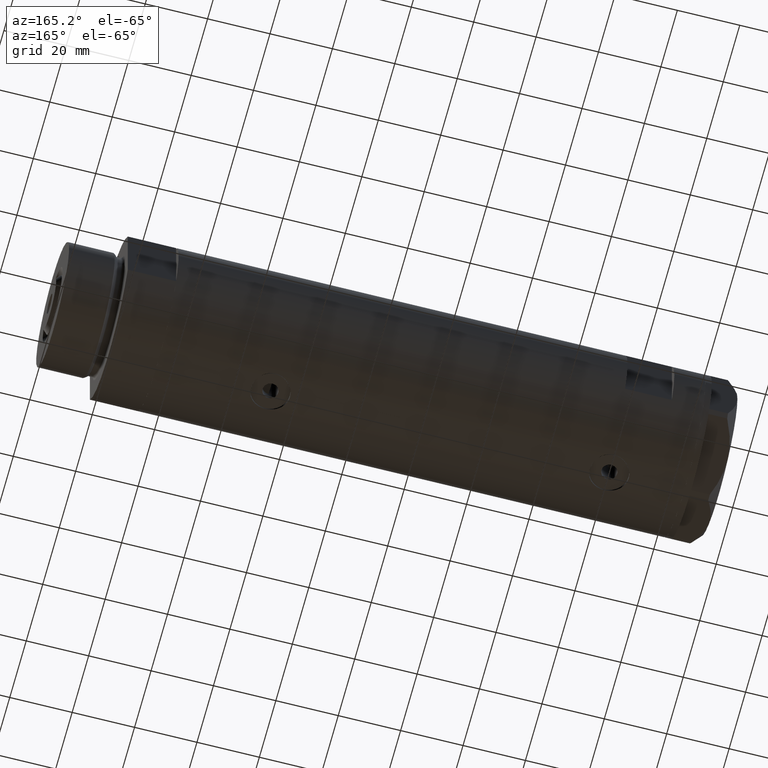
[diagram: clean part render]
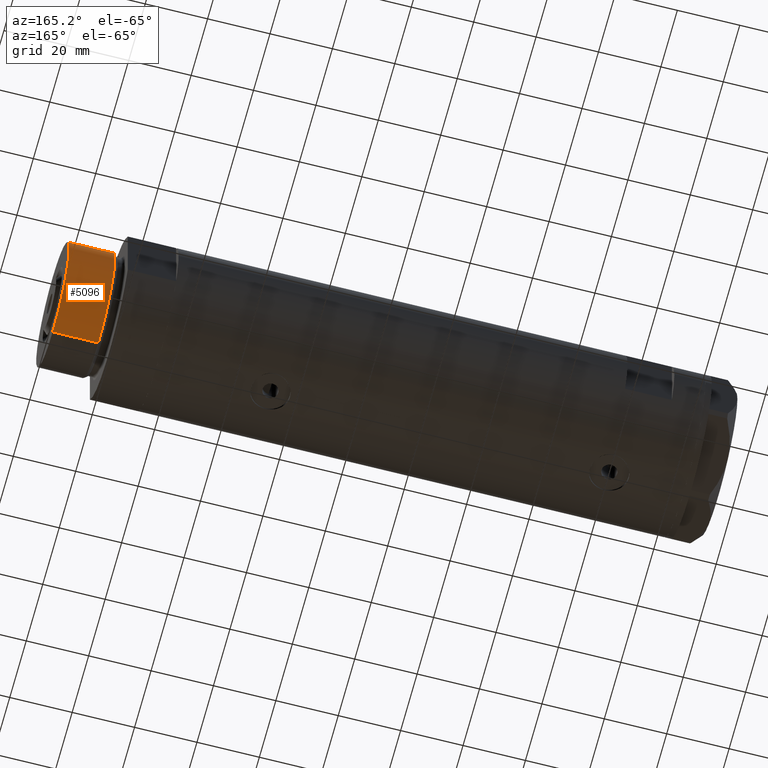
[diagram: same view with one face highlighted and labeled with its STEP entity id]
A machine part, auxiliary view. The second image highlights one B-rep face of the part: STEP entity #5096.
In plain terms, the highlighted cylindrical surface (partial cylindrical patch) has radius 20 mm, axis along (-1, -0, 0).
Its self-contained STEP definition (entity closure, byte-faithful):
#182 = CARTESIAN_POINT ( 'NONE',  ( -19.99999999999999645, 0.000000000000000000, 18.87384048104053846 ) ) ;
#319 = ORIENTED_EDGE ( 'NONE', *, *, #559, .T. ) ;
#559 = EDGE_CURVE ( 'NONE', #4951, #3805, #786, .T. ) ;
#562 = EDGE_CURVE ( 'NONE', #4951, #3123, #3893, .T. ) ;
#785 = DIRECTION ( 'NONE',  ( -0.000000000000000000, -0.000000000000000000, -1.000000000000000000 ) ) ;
#786 = LINE ( 'NONE', #5188, #2713 ) ;
#952 = VECTOR ( 'NONE', #785, 1000.000000000000000 ) ;
#1252 = DIRECTION ( 'NONE',  ( 1.000000000000000000, 0.000000000000000000, 0.000000000000000000 ) ) ;
#1317 = ORIENTED_EDGE ( 'NONE', *, *, #5001, .F. ) ;
#1455 = CYLINDRICAL_SURFACE ( 'NONE', #4993, 19.99999999999999645 ) ;
#1896 = CARTESIAN_POINT ( 'NONE',  ( 0.000000000000000000, 0.000000000000000000, 18.87384048104053846 ) ) ;
#1996 = DIRECTION ( 'NONE',  ( -0.000000000000000000, -0.000000000000000000, -1.000000000000000000 ) ) ;
#2172 = VERTEX_POINT ( 'NONE', #182 ) ;
#2185 = CARTESIAN_POINT ( 'NONE',  ( 0.000000000000000000, 0.000000000000000000, 33.50000000000000000 ) ) ;
#2464 = CARTESIAN_POINT ( 'NONE',  ( 0.000000000000000000, 0.000000000000000000, 33.50000000000000000 ) ) ;
#2713 = VECTOR ( 'NONE', #1996, 1000.000000000000000 ) ;
#2778 = LINE ( 'NONE', #4387, #952 ) ;
#2872 = ORIENTED_EDGE ( 'NONE', *, *, #562, .F. ) ;
#3004 = DIRECTION ( 'NONE',  ( -0.000000000000000000, -0.000000000000000000, -1.000000000000000000 ) ) ;
#3123 = VERTEX_POINT ( 'NONE', #4079 ) ;
#3375 = EDGE_LOOP ( 'NONE', ( #2872, #319, #4270, #1317 ) ) ;
#3431 = FACE_OUTER_BOUND ( 'NONE', #3375, .T. ) ;
#3703 = AXIS2_PLACEMENT_3D ( 'NONE', #2464, #4001, #1252 ) ;
#3724 = CIRCLE ( 'NONE', #4902, 19.99999999999999645 ) ;
#3764 = CARTESIAN_POINT ( 'NONE',  ( 19.99999999999999645, 2.449293598294706119E-15, 18.87384048104053846 ) ) ;
#3805 = VERTEX_POINT ( 'NONE', #3764 ) ;
#3893 = CIRCLE ( 'NONE', #3703, 19.99999999999999645 ) ;
#3952 = DIRECTION ( 'NONE',  ( -0.000000000000000000, -0.000000000000000000, 1.000000000000000000 ) ) ;
#4001 = DIRECTION ( 'NONE',  ( 0.000000000000000000, 0.000000000000000000, 1.000000000000000000 ) ) ;
#4079 = CARTESIAN_POINT ( 'NONE',  ( -19.99999999999999645, 0.000000000000000000, 33.50000000000000000 ) ) ;
#4270 = ORIENTED_EDGE ( 'NONE', *, *, #4342, .T. ) ;
#4304 = DIRECTION ( 'NONE',  ( -1.000000000000000000, 0.000000000000000000, 0.000000000000000000 ) ) ;
#4316 = DIRECTION ( 'NONE',  ( 1.000000000000000000, 0.000000000000000000, 0.000000000000000000 ) ) ;
#4342 = EDGE_CURVE ( 'NONE', #3805, #2172, #3724, .T. ) ;
#4387 = CARTESIAN_POINT ( 'NONE',  ( -19.99999999999999645, 0.000000000000000000, 33.50000000000000000 ) ) ;
#4553 = CARTESIAN_POINT ( 'NONE',  ( 19.99999999999999645, 2.449293598294706119E-15, 33.50000000000000000 ) ) ;
#4902 = AXIS2_PLACEMENT_3D ( 'NONE', #1896, #3952, #4316 ) ;
#4951 = VERTEX_POINT ( 'NONE', #4553 ) ;
#4993 = AXIS2_PLACEMENT_3D ( 'NONE', #2185, #3004, #4304 ) ;
#5001 = EDGE_CURVE ( 'NONE', #3123, #2172, #2778, .T. ) ;
#5096 = ADVANCED_FACE ( 'NONE', ( #3431 ), #1455, .T. ) ;
#5188 = CARTESIAN_POINT ( 'NONE',  ( 19.99999999999999645, 2.449293598294706119E-15, 33.50000000000000000 ) ) ;